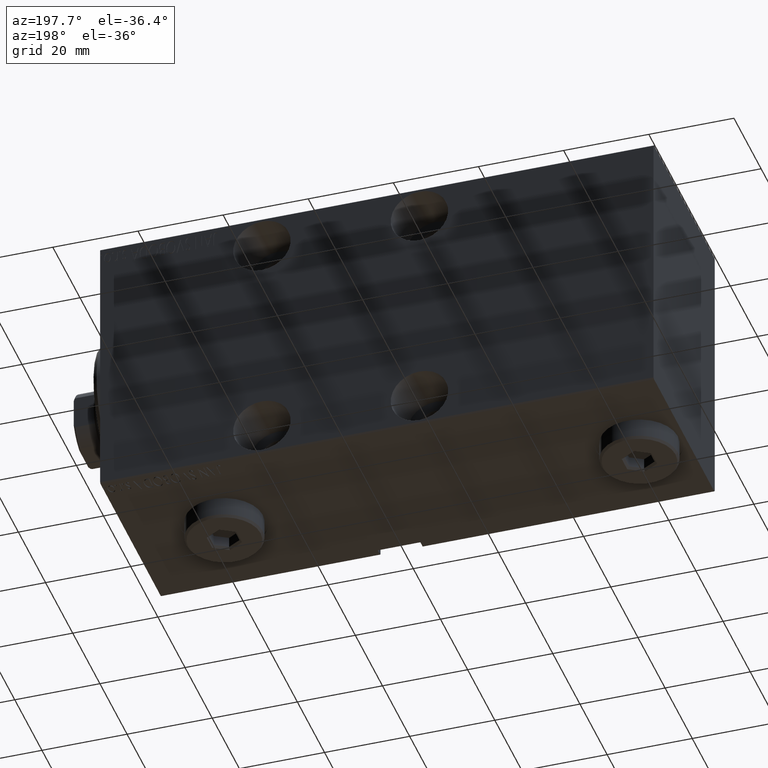
[diagram: clean part render]
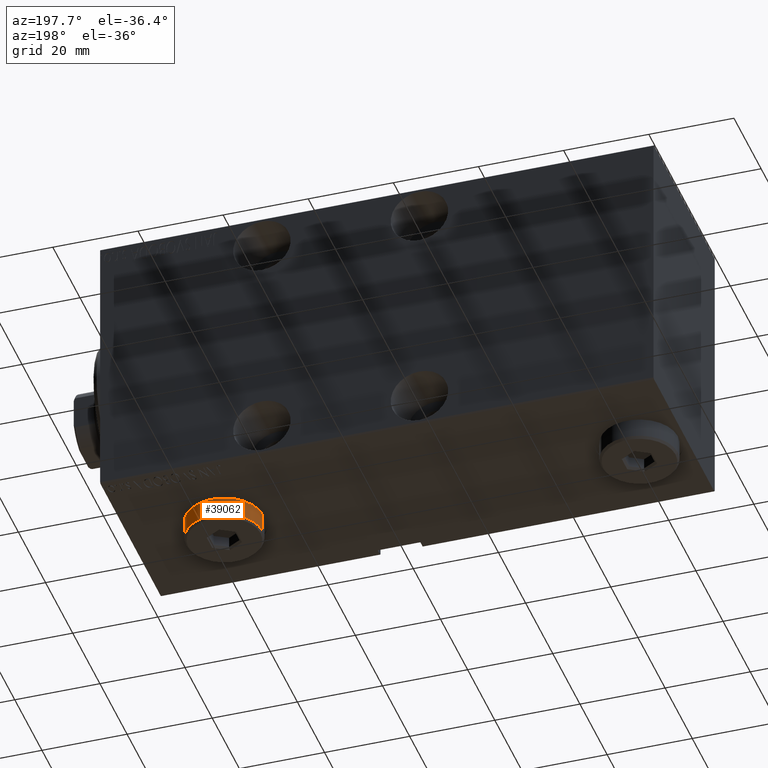
[diagram: same view with one face highlighted and labeled with its STEP entity id]
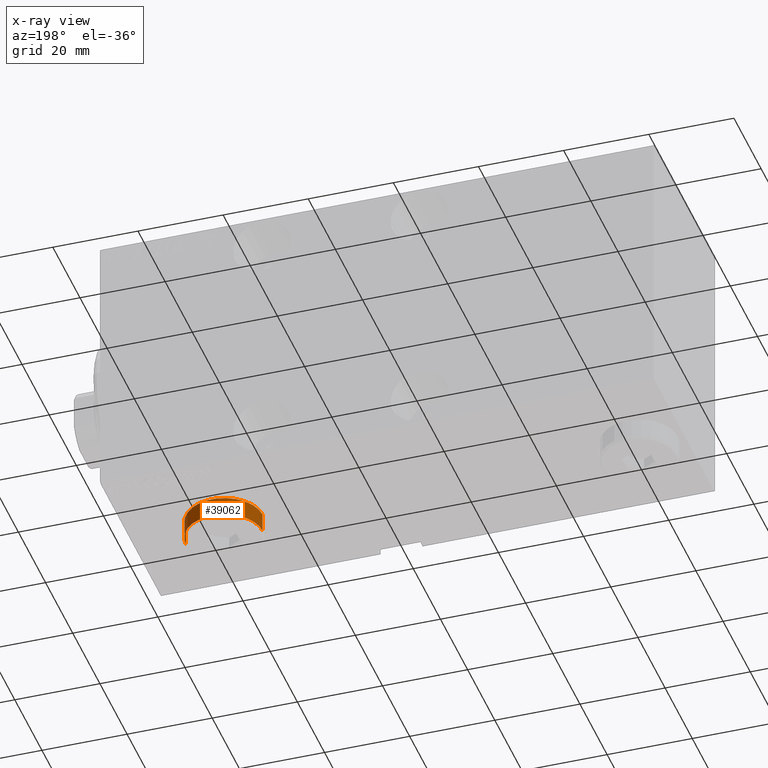
[diagram: x-ray of the same camera — body ghosted, the highlighted face saturated]
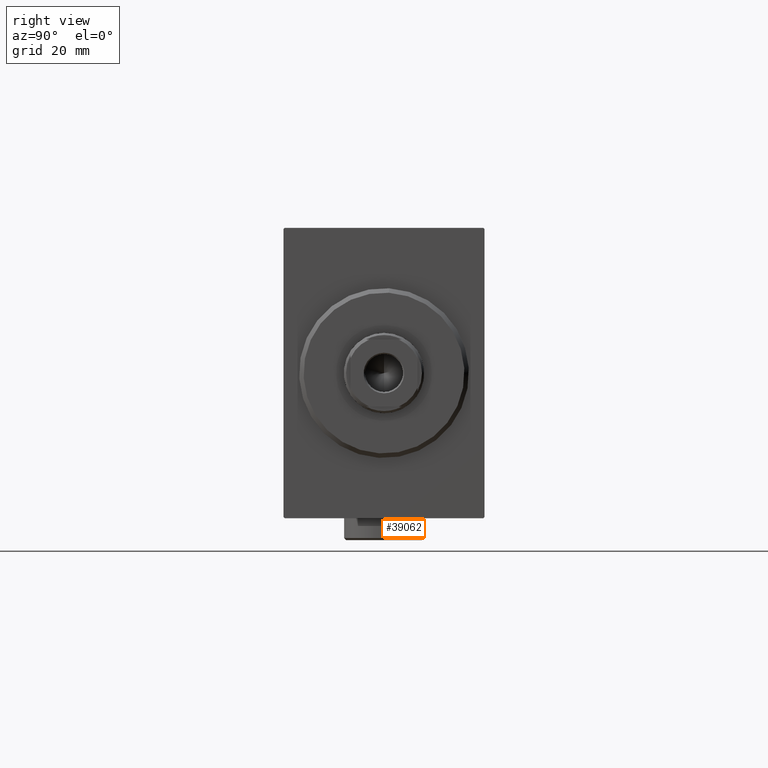
[diagram: same view with one face highlighted and labeled with its STEP entity id]
A machine part, auxiliary view. The second image highlights one B-rep face of the part: STEP entity #39062.
The next image is the same camera in x-ray: the body ghosted, the highlighted face saturated — about 0% of this face is hidden behind the body in this view.
A second angle (right view) of the same face is appended — the face is thin or edge-on in the first view.
In plain terms, the highlighted cylindrical surface (partial cylindrical patch) has radius 9 mm, axis along (0, 0, 1).
Its self-contained STEP definition (entity closure, byte-faithful):
#1162 = AXIS2_PLACEMENT_3D ( 'NONE', #28679, #32493, #1642 ) ;
#1287 = CIRCLE ( 'NONE', #25742, 9.000000000000001776 ) ;
#1642 = DIRECTION ( 'NONE',  ( 1.000000000000000000, 0.000000000000000000, 0.000000000000000000 ) ) ;
#2572 = DIRECTION ( 'NONE',  ( -0.000000000000000000, -0.000000000000000000, -1.000000000000000000 ) ) ;
#2720 = VERTEX_POINT ( 'NONE', #40044 ) ;
#2765 = AXIS2_PLACEMENT_3D ( 'NONE', #30699, #2572, #23500 ) ;
#2791 = CYLINDRICAL_SURFACE ( 'NONE', #2765, 9.000000000000001776 ) ;
#3563 = DIRECTION ( 'NONE',  ( 1.000000000000000000, 0.000000000000000000, 0.000000000000000000 ) ) ;
#3730 = ORIENTED_EDGE ( 'NONE', *, *, #11325, .F. ) ;
#6168 = DIRECTION ( 'NONE',  ( -0.000000000000000000, -0.000000000000000000, -1.000000000000000000 ) ) ;
#8538 = CARTESIAN_POINT ( 'NONE',  ( 0.000000000000000000, 0.000000000000000000, 0.000000000000000000 ) ) ;
#10141 = VERTEX_POINT ( 'NONE', #21388 ) ;
#11325 = EDGE_CURVE ( 'NONE', #18661, #10141, #30804, .T. ) ;
#12393 = CARTESIAN_POINT ( 'NONE',  ( -9.000000000000001776, 0.000000000000000000, 0.000000000000000000 ) ) ;
#13232 = VECTOR ( 'NONE', #6168, 1000.000000000000000 ) ;
#16967 = FACE_OUTER_BOUND ( 'NONE', #24657, .T. ) ;
#16969 = CIRCLE ( 'NONE', #1162, 9.000000000000001776 ) ;
#17956 = ORIENTED_EDGE ( 'NONE', *, *, #27752, .T. ) ;
#18661 = VERTEX_POINT ( 'NONE', #37658 ) ;
#21388 = CARTESIAN_POINT ( 'NONE',  ( 9.000000000000001776, 1.102182119232617911E-15, 0.000000000000000000 ) ) ;
#22263 = DIRECTION ( 'NONE',  ( 0.000000000000000000, 0.000000000000000000, 1.000000000000000000 ) ) ;
#23284 = LINE ( 'NONE', #43109, #13232 ) ;
#23500 = DIRECTION ( 'NONE',  ( -1.000000000000000000, 0.000000000000000000, 0.000000000000000000 ) ) ;
#23820 = CARTESIAN_POINT ( 'NONE',  ( 9.000000000000001776, 1.102182119232617911E-15, 5.000000000000000000 ) ) ;
#24657 = EDGE_LOOP ( 'NONE', ( #3730, #37204, #17956, #28609 ) ) ;
#25742 = AXIS2_PLACEMENT_3D ( 'NONE', #8538, #22263, #3563 ) ;
#27752 = EDGE_CURVE ( 'NONE', #2720, #34098, #23284, .T. ) ;
#28609 = ORIENTED_EDGE ( 'NONE', *, *, #37186, .T. ) ;
#28679 = CARTESIAN_POINT ( 'NONE',  ( 0.000000000000000000, 0.000000000000000000, 4.500000000000006217 ) ) ;
#30699 = CARTESIAN_POINT ( 'NONE',  ( 0.000000000000000000, 0.000000000000000000, 5.000000000000000000 ) ) ;
#30804 = LINE ( 'NONE', #23820, #39362 ) ;
#32402 = EDGE_CURVE ( 'NONE', #18661, #2720, #16969, .T. ) ;
#32493 = DIRECTION ( 'NONE',  ( 0.000000000000000000, 0.000000000000000000, -1.000000000000000000 ) ) ;
#34098 = VERTEX_POINT ( 'NONE', #12393 ) ;
#37186 = EDGE_CURVE ( 'NONE', #34098, #10141, #1287, .T. ) ;
#37204 = ORIENTED_EDGE ( 'NONE', *, *, #32402, .T. ) ;
#37658 = CARTESIAN_POINT ( 'NONE',  ( 9.000000000000001776, 1.102182119232617911E-15, 4.500000000000006217 ) ) ;
#38236 = DIRECTION ( 'NONE',  ( -0.000000000000000000, -0.000000000000000000, -1.000000000000000000 ) ) ;
#39062 = ADVANCED_FACE ( 'NONE', ( #16967 ), #2791, .T. ) ;
#39362 = VECTOR ( 'NONE', #38236, 1000.000000000000000 ) ;
#40044 = CARTESIAN_POINT ( 'NONE',  ( -9.000000000000001776, 0.000000000000000000, 4.500000000000006217 ) ) ;
#43109 = CARTESIAN_POINT ( 'NONE',  ( -9.000000000000001776, 0.000000000000000000, 5.000000000000000000 ) ) ;